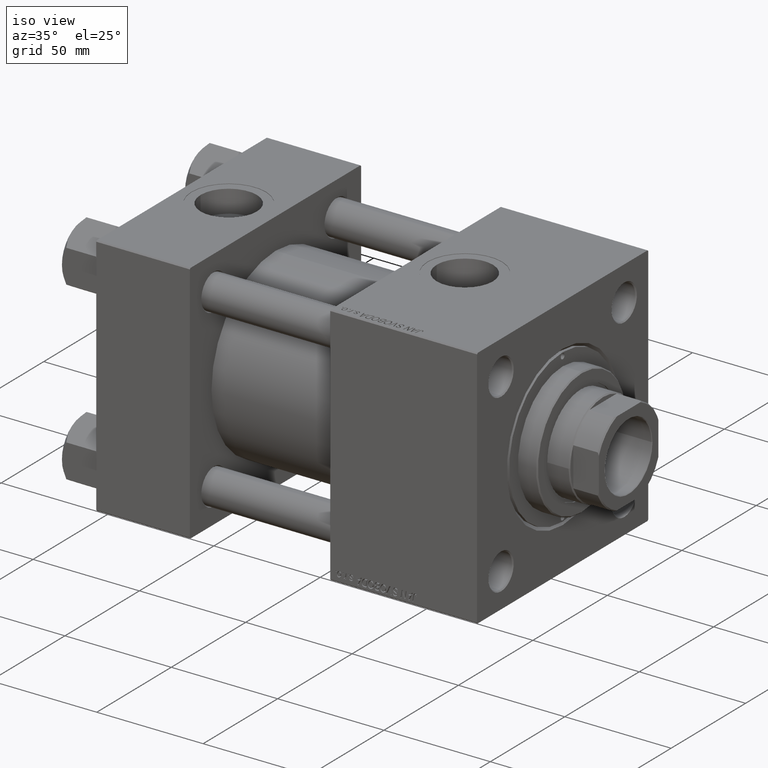
[diagram: clean part render]
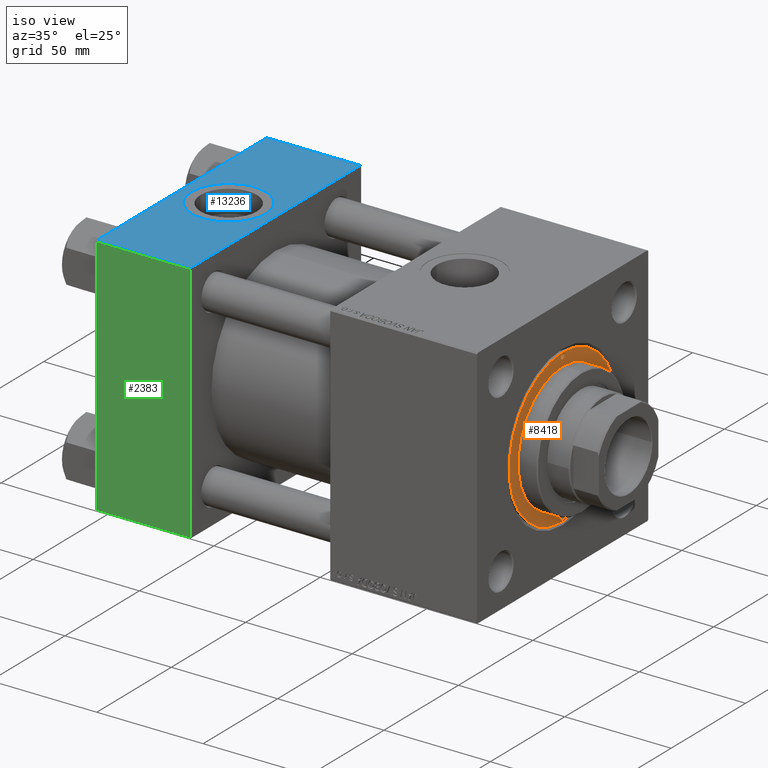
[diagram: same view with three faces highlighted in distinct colors, each labeled with its STEP entity id]
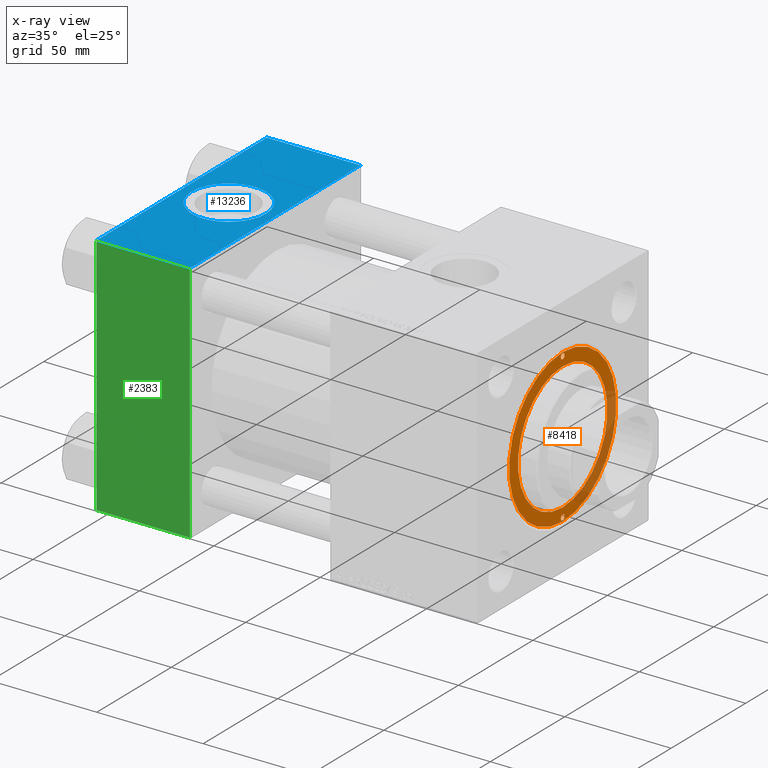
[diagram: x-ray of the same camera — body ghosted, the three highlighted faces saturated]
A machine part, iso view with three faces highlighted in distinct colors.
The next image is the same camera in x-ray (body ghosted, the three faces saturated) — at least one of them is partly hidden behind the body in this view.
Their STEP definitions:

[orange] entity #8418 — the highlighted planar face has unit normal (1, 0, 0).
#423 = ORIENTED_EDGE ( 'NONE', *, *, #40666, .F. ) ;
#1001 = DIRECTION ( 'NONE',  ( 0.000000000000000000, 0.000000000000000000, 1.000000000000000000 ) ) ;
#1249 = CARTESIAN_POINT ( 'NONE',  ( 0.000000000000000000, 0.000000000000000000, 28.69999999999999929 ) ) ;
#1363 = CIRCLE ( 'NONE', #14486, 36.00000000000000000 ) ;
#1564 = AXIS2_PLACEMENT_3D ( 'NONE', #1249, #1001, #35954 ) ;
#2302 = AXIS2_PLACEMENT_3D ( 'NONE', #12744, #8394, #25069 ) ;
#2552 = DIRECTION ( 'NONE',  ( 0.000000000000000000, 0.000000000000000000, 1.000000000000000000 ) ) ;
#3566 = PLANE ( 'NONE',  #35776 ) ;
#3917 = VERTEX_POINT ( 'NONE', #50449 ) ;
#4671 = CARTESIAN_POINT ( 'NONE',  ( -33.00000000000000000, 0.000000000000000000, 28.69999999999999929 ) ) ;
#5636 = DIRECTION ( 'NONE',  ( 0.000000000000000000, 0.000000000000000000, 1.000000000000000000 ) ) ;
#5796 = AXIS2_PLACEMENT_3D ( 'NONE', #44692, #5636, #48801 ) ;
#6740 = VERTEX_POINT ( 'NONE', #38655 ) ;
#6927 = AXIS2_PLACEMENT_3D ( 'NONE', #43673, #36230, #40589 ) ;
#7438 = FACE_BOUND ( 'NONE', #46282, .T. ) ;
#7453 = CIRCLE ( 'NONE', #5796, 1.250000000000001110 ) ;
#8394 = DIRECTION ( 'NONE',  ( 0.000000000000000000, 0.000000000000000000, 1.000000000000000000 ) ) ;
#8418 = ADVANCED_FACE ( 'NONE', ( #7438, #38800, #23106, #11779 ), #3566, .T. ) ;
#8568 = EDGE_CURVE ( 'NONE', #44452, #3917, #1363, .T. ) ;
#11779 = FACE_OUTER_BOUND ( 'NONE', #21892, .T. ) ;
#12021 = EDGE_CURVE ( 'NONE', #27117, #17313, #12904, .T. ) ;
#12744 = CARTESIAN_POINT ( 'NONE',  ( 34.25000000000000000, 0.000000000000000000, 28.69999999999999929 ) ) ;
#12904 = CIRCLE ( 'NONE', #48208, 1.250000000000001110 ) ;
#14027 = ORIENTED_EDGE ( 'NONE', *, *, #34487, .F. ) ;
#14486 = AXIS2_PLACEMENT_3D ( 'NONE', #34121, #35317, #18677 ) ;
#15075 = CARTESIAN_POINT ( 'NONE',  ( 0.000000000000000000, 0.000000000000000000, 28.69999999999999929 ) ) ;
#15883 = DIRECTION ( 'NONE',  ( 1.000000000000000000, 0.000000000000000000, -0.000000000000000000 ) ) ;
#17190 = ORIENTED_EDGE ( 'NONE', *, *, #39849, .F. ) ;
#17313 = VERTEX_POINT ( 'NONE', #42458 ) ;
#18677 = DIRECTION ( 'NONE',  ( 1.000000000000000000, 0.000000000000000000, 0.000000000000000000 ) ) ;
#19545 = EDGE_CURVE ( 'NONE', #42826, #42076, #7453, .T. ) ;
#20529 = CARTESIAN_POINT ( 'NONE',  ( -30.00000000000000000, 0.000000000000000000, 28.69999999999999929 ) ) ;
#21892 = EDGE_LOOP ( 'NONE', ( #39592, #50378 ) ) ;
#22120 = CIRCLE ( 'NONE', #2302, 1.250000000000001110 ) ;
#23106 = FACE_BOUND ( 'NONE', #39727, .T. ) ;
#23565 = CIRCLE ( 'NONE', #25177, 1.250000000000001110 ) ;
#24369 = CARTESIAN_POINT ( 'NONE',  ( -35.50000000000000711, 1.530808498934184175E-16, 28.69999999999999929 ) ) ;
#24651 = EDGE_LOOP ( 'NONE', ( #423, #30419 ) ) ;
#25069 = DIRECTION ( 'NONE',  ( 1.000000000000000000, 0.000000000000000000, 0.000000000000000000 ) ) ;
#25177 = AXIS2_PLACEMENT_3D ( 'NONE', #49836, #2552, #25684 ) ;
#25684 = DIRECTION ( 'NONE',  ( 1.000000000000000000, 0.000000000000000000, 0.000000000000000000 ) ) ;
#26646 = DIRECTION ( 'NONE',  ( 0.000000000000000000, 0.000000000000000000, 1.000000000000000000 ) ) ;
#27117 = VERTEX_POINT ( 'NONE', #37221 ) ;
#27615 = DIRECTION ( 'NONE',  ( 0.000000000000000000, 0.000000000000000000, 1.000000000000000000 ) ) ;
#28243 = EDGE_CURVE ( 'NONE', #3917, #44452, #47949, .T. ) ;
#30419 = ORIENTED_EDGE ( 'NONE', *, *, #12021, .F. ) ;
#31216 = CARTESIAN_POINT ( 'NONE',  ( 34.25000000000000000, 0.000000000000000000, 28.69999999999999929 ) ) ;
#32231 = CARTESIAN_POINT ( 'NONE',  ( -36.00000000000000000, 0.000000000000000000, 28.69999999999999929 ) ) ;
#34121 = CARTESIAN_POINT ( 'NONE',  ( 0.000000000000000000, 0.000000000000000000, 28.69999999999999929 ) ) ;
#34414 = AXIS2_PLACEMENT_3D ( 'NONE', #15075, #26646, #42339 ) ;
#34487 = EDGE_CURVE ( 'NONE', #42076, #42826, #23565, .T. ) ;
#35317 = DIRECTION ( 'NONE',  ( 0.000000000000000000, 0.000000000000000000, 1.000000000000000000 ) ) ;
#35776 = AXIS2_PLACEMENT_3D ( 'NONE', #42899, #43140, #15883 ) ;
#35954 = DIRECTION ( 'NONE',  ( 1.000000000000000000, 0.000000000000000000, 0.000000000000000000 ) ) ;
#36230 = DIRECTION ( 'NONE',  ( 0.000000000000000000, 0.000000000000000000, 1.000000000000000000 ) ) ;
#37221 = CARTESIAN_POINT ( 'NONE',  ( 33.00000000000000000, 1.530808498934184175E-16, 28.69999999999999929 ) ) ;
#38655 = CARTESIAN_POINT ( 'NONE',  ( 30.00000000000000000, 3.673940397442059178E-15, 28.69999999999999929 ) ) ;
#38800 = FACE_BOUND ( 'NONE', #24651, .T. ) ;
#39377 = EDGE_CURVE ( 'NONE', #6740, #47552, #45886, .T. ) ;
#39592 = ORIENTED_EDGE ( 'NONE', *, *, #8568, .T. ) ;
#39727 = EDGE_LOOP ( 'NONE', ( #17190, #41675 ) ) ;
#39849 = EDGE_CURVE ( 'NONE', #47552, #6740, #50718, .T. ) ;
#40589 = DIRECTION ( 'NONE',  ( 1.000000000000000000, 0.000000000000000000, 0.000000000000000000 ) ) ;
#40666 = EDGE_CURVE ( 'NONE', #17313, #27117, #22120, .T. ) ;
#41675 = ORIENTED_EDGE ( 'NONE', *, *, #39377, .F. ) ;
#42076 = VERTEX_POINT ( 'NONE', #4671 ) ;
#42339 = DIRECTION ( 'NONE',  ( 1.000000000000000000, 0.000000000000000000, 0.000000000000000000 ) ) ;
#42458 = CARTESIAN_POINT ( 'NONE',  ( 35.50000000000000711, 0.000000000000000000, 28.69999999999999929 ) ) ;
#42826 = VERTEX_POINT ( 'NONE', #24369 ) ;
#42899 = CARTESIAN_POINT ( 'NONE',  ( 0.000000000000000000, 0.000000000000000000, 28.69999999999999929 ) ) ;
#43140 = DIRECTION ( 'NONE',  ( 0.000000000000000000, 0.000000000000000000, 1.000000000000000000 ) ) ;
#43290 = DIRECTION ( 'NONE',  ( 1.000000000000000000, 0.000000000000000000, 0.000000000000000000 ) ) ;
#43673 = CARTESIAN_POINT ( 'NONE',  ( 0.000000000000000000, 0.000000000000000000, 28.69999999999999929 ) ) ;
#44062 = ORIENTED_EDGE ( 'NONE', *, *, #19545, .F. ) ;
#44452 = VERTEX_POINT ( 'NONE', #32231 ) ;
#44692 = CARTESIAN_POINT ( 'NONE',  ( -34.25000000000000000, 0.000000000000000000, 28.69999999999999929 ) ) ;
#45886 = CIRCLE ( 'NONE', #1564, 30.00000000000000000 ) ;
#46282 = EDGE_LOOP ( 'NONE', ( #14027, #44062 ) ) ;
#47552 = VERTEX_POINT ( 'NONE', #20529 ) ;
#47949 = CIRCLE ( 'NONE', #6927, 36.00000000000000000 ) ;
#48208 = AXIS2_PLACEMENT_3D ( 'NONE', #31216, #27615, #43290 ) ;
#48801 = DIRECTION ( 'NONE',  ( 1.000000000000000000, 0.000000000000000000, 0.000000000000000000 ) ) ;
#49836 = CARTESIAN_POINT ( 'NONE',  ( -34.25000000000000000, 0.000000000000000000, 28.69999999999999929 ) ) ;
#50378 = ORIENTED_EDGE ( 'NONE', *, *, #28243, .T. ) ;
#50449 = CARTESIAN_POINT ( 'NONE',  ( 36.00000000000000000, 4.408728476930470856E-15, 28.69999999999999929 ) ) ;
#50718 = CIRCLE ( 'NONE', #34414, 30.00000000000000000 ) ;

[blue] entity #13236 — the highlighted planar face has unit normal (0, 0, -1).
#46 = CARTESIAN_POINT ( 'NONE',  ( 0.000000000000000000, 57.49999999999999289, 57.50000000000000711 ) ) ;
#227 = CARTESIAN_POINT ( 'NONE',  ( 4.499999999999997335, -6.530485481376167224E-15, 57.50000000000000000 ) ) ;
#1009 = DIRECTION ( 'NONE',  ( 1.000000000000000000, 0.000000000000000000, 0.000000000000000000 ) ) ;
#1403 = VECTOR ( 'NONE', #21454, 1000.000000000000000 ) ;
#2510 = FACE_OUTER_BOUND ( 'NONE', #43989, .T. ) ;
#3097 = EDGE_LOOP ( 'NONE', ( #20693, #30314 ) ) ;
#3955 = AXIS2_PLACEMENT_3D ( 'NONE', #34130, #33368, #33627 ) ;
#4293 = EDGE_CURVE ( 'NONE', #10161, #41002, #24405, .T. ) ;
#5573 = ORIENTED_EDGE ( 'NONE', *, *, #7529, .F. ) ;
#6027 = LINE ( 'NONE', #49462, #1403 ) ;
#6238 = VERTEX_POINT ( 'NONE', #227 ) ;
#6565 = CARTESIAN_POINT ( 'NONE',  ( 44.00000000000000000, -57.00000000000003553, 57.49999999999999289 ) ) ;
#6854 = ORIENTED_EDGE ( 'NONE', *, *, #47565, .T. ) ;
#7529 = EDGE_CURVE ( 'NONE', #10161, #40786, #6027, .T. ) ;
#8102 = DIRECTION ( 'NONE',  ( 0.000000000000000000, 0.000000000000000000, 1.000000000000000000 ) ) ;
#8361 = CARTESIAN_POINT ( 'NONE',  ( 22.00000000000000000, -8.673617379884035472E-15, 57.50000000000000000 ) ) ;
#8864 = DIRECTION ( 'NONE',  ( 1.000000000000000000, 0.000000000000000000, 0.000000000000000000 ) ) ;
#8962 = EDGE_CURVE ( 'NONE', #41002, #28408, #42205, .T. ) ;
#9910 = VECTOR ( 'NONE', #1009, 1000.000000000000000 ) ;
#10161 = VERTEX_POINT ( 'NONE', #37943 ) ;
#12960 = AXIS2_PLACEMENT_3D ( 'NONE', #15839, #31518, #18690 ) ;
#13236 = ADVANCED_FACE ( 'NONE', ( #37480, #2510 ), #18433, .F. ) ;
#13450 = ORIENTED_EDGE ( 'NONE', *, *, #8962, .T. ) ;
#15293 = VECTOR ( 'NONE', #16706, 1000.000000000000000 ) ;
#15691 = AXIS2_PLACEMENT_3D ( 'NONE', #8361, #8102, #8864 ) ;
#15839 = CARTESIAN_POINT ( 'NONE',  ( 22.00000000000000000, -8.673617379884035472E-15, 57.50000000000000000 ) ) ;
#16706 = DIRECTION ( 'NONE',  ( 0.000000000000000000, -1.000000000000000000, -1.206764157201257045E-16 ) ) ;
#18433 = PLANE ( 'NONE',  #3955 ) ;
#18690 = DIRECTION ( 'NONE',  ( 1.000000000000000000, 0.000000000000000000, 0.000000000000000000 ) ) ;
#19414 = VERTEX_POINT ( 'NONE', #40596 ) ;
#20121 = EDGE_CURVE ( 'NONE', #19414, #6238, #27149, .T. ) ;
#20693 = ORIENTED_EDGE ( 'NONE', *, *, #20121, .F. ) ;
#21454 = DIRECTION ( 'NONE',  ( 0.000000000000000000, -1.000000000000000000, -1.206764157201257045E-16 ) ) ;
#21560 = CARTESIAN_POINT ( 'NONE',  ( 0.000000000000000000, -57.00000000000003553, 57.49999999999999289 ) ) ;
#24405 = LINE ( 'NONE', #49069, #43945 ) ;
#27149 = CIRCLE ( 'NONE', #15691, 17.50000000000000000 ) ;
#28122 = CARTESIAN_POINT ( 'NONE',  ( 0.000000000000000000, 57.00000000000000711, 57.50000000000000711 ) ) ;
#28408 = VERTEX_POINT ( 'NONE', #21560 ) ;
#28678 = CIRCLE ( 'NONE', #12960, 17.50000000000000000 ) ;
#30314 = ORIENTED_EDGE ( 'NONE', *, *, #39663, .F. ) ;
#31518 = DIRECTION ( 'NONE',  ( 0.000000000000000000, 0.000000000000000000, 1.000000000000000000 ) ) ;
#33368 = DIRECTION ( 'NONE',  ( 0.000000000000000000, 1.206764157201257045E-16, -1.000000000000000000 ) ) ;
#33627 = DIRECTION ( 'NONE',  ( 0.000000000000000000, 1.000000000000000000, 1.206764157201257045E-16 ) ) ;
#34130 = CARTESIAN_POINT ( 'NONE',  ( 44.00000000000000000, 57.49999999999999289, 57.50000000000000711 ) ) ;
#36719 = CARTESIAN_POINT ( 'NONE',  ( 44.00000000000000000, -57.00000000000003553, 57.49999999999999289 ) ) ;
#37480 = FACE_BOUND ( 'NONE', #3097, .T. ) ;
#37943 = CARTESIAN_POINT ( 'NONE',  ( 44.00000000000000000, 57.00000000000000711, 57.50000000000000711 ) ) ;
#39663 = EDGE_CURVE ( 'NONE', #6238, #19414, #28678, .T. ) ;
#40100 = DIRECTION ( 'NONE',  ( -1.000000000000000000, 0.000000000000000000, 0.000000000000000000 ) ) ;
#40329 = LINE ( 'NONE', #36719, #9910 ) ;
#40596 = CARTESIAN_POINT ( 'NONE',  ( 39.50000000000000000, -8.673617379884035472E-15, 57.50000000000000000 ) ) ;
#40786 = VERTEX_POINT ( 'NONE', #6565 ) ;
#41002 = VERTEX_POINT ( 'NONE', #28122 ) ;
#42205 = LINE ( 'NONE', #46, #15293 ) ;
#43945 = VECTOR ( 'NONE', #40100, 1000.000000000000000 ) ;
#43989 = EDGE_LOOP ( 'NONE', ( #13450, #6854, #5573, #48128 ) ) ;
#47565 = EDGE_CURVE ( 'NONE', #28408, #40786, #40329, .T. ) ;
#48128 = ORIENTED_EDGE ( 'NONE', *, *, #4293, .T. ) ;
#49069 = CARTESIAN_POINT ( 'NONE',  ( 0.000000000000000000, 57.00000000000000711, 57.50000000000000711 ) ) ;
#49462 = CARTESIAN_POINT ( 'NONE',  ( 44.00000000000000000, 57.49999999999999289, 57.50000000000000711 ) ) ;

[green] entity #2383 — the highlighted planar face has unit normal (0, 1, 0).
#88 = LINE ( 'NONE', #35044, #30304 ) ;
#2383 = ADVANCED_FACE ( 'NONE', ( #7222 ), #3104, .F. ) ;
#2786 = DIRECTION ( 'NONE',  ( -1.000000000000000000, 0.000000000000000000, 0.000000000000000000 ) ) ;
#3104 = PLANE ( 'NONE',  #33283 ) ;
#3365 = DIRECTION ( 'NONE',  ( -0.000000000000000000, 1.000000000000000000, 0.000000000000000000 ) ) ;
#4232 = CARTESIAN_POINT ( 'NONE',  ( 0.000000000000000000, -57.50000000000000711, -57.00000000000000711 ) ) ;
#6252 = ORIENTED_EDGE ( 'NONE', *, *, #7101, .F. ) ;
#6469 = DIRECTION ( 'NONE',  ( 0.000000000000000000, 0.000000000000000000, -1.000000000000000000 ) ) ;
#7101 = EDGE_CURVE ( 'NONE', #45337, #32787, #19049, .T. ) ;
#7222 = FACE_OUTER_BOUND ( 'NONE', #30596, .T. ) ;
#10293 = VERTEX_POINT ( 'NONE', #4232 ) ;
#11642 = DIRECTION ( 'NONE',  ( 0.000000000000000000, 0.000000000000000000, -1.000000000000000000 ) ) ;
#16379 = EDGE_CURVE ( 'NONE', #38162, #10293, #88, .T. ) ;
#19049 = LINE ( 'NONE', #22648, #22635 ) ;
#19501 = EDGE_CURVE ( 'NONE', #45337, #38162, #25674, .T. ) ;
#22635 = VECTOR ( 'NONE', #6469, 1000.000000000000000 ) ;
#22648 = CARTESIAN_POINT ( 'NONE',  ( 44.00000000000000000, -57.50000000000000711, 57.49999999999999289 ) ) ;
#22714 = EDGE_CURVE ( 'NONE', #10293, #32787, #42789, .T. ) ;
#23235 = CARTESIAN_POINT ( 'NONE',  ( 44.00000000000000000, -57.50000000000000711, -57.00000000000000711 ) ) ;
#24678 = VECTOR ( 'NONE', #2786, 1000.000000000000000 ) ;
#25674 = LINE ( 'NONE', #41881, #24678 ) ;
#28792 = CARTESIAN_POINT ( 'NONE',  ( 0.000000000000000000, -57.50000000000000711, 57.00000000000000711 ) ) ;
#30304 = VECTOR ( 'NONE', #11642, 1000.000000000000000 ) ;
#30596 = EDGE_LOOP ( 'NONE', ( #36959, #31824, #6252, #42015 ) ) ;
#31215 = CARTESIAN_POINT ( 'NONE',  ( 44.00000000000000000, -57.50000000000000711, 57.00000000000000711 ) ) ;
#31824 = ORIENTED_EDGE ( 'NONE', *, *, #22714, .T. ) ;
#32787 = VERTEX_POINT ( 'NONE', #42243 ) ;
#33283 = AXIS2_PLACEMENT_3D ( 'NONE', #38585, #3365, #50386 ) ;
#35044 = CARTESIAN_POINT ( 'NONE',  ( 0.000000000000000000, -57.50000000000000711, 57.49999999999999289 ) ) ;
#36959 = ORIENTED_EDGE ( 'NONE', *, *, #16379, .T. ) ;
#38162 = VERTEX_POINT ( 'NONE', #28792 ) ;
#38585 = CARTESIAN_POINT ( 'NONE',  ( 44.00000000000000000, -57.50000000000000711, 57.49999999999999289 ) ) ;
#41881 = CARTESIAN_POINT ( 'NONE',  ( 44.00000000000000000, -57.50000000000000711, 57.00000000000000711 ) ) ;
#42015 = ORIENTED_EDGE ( 'NONE', *, *, #19501, .T. ) ;
#42243 = CARTESIAN_POINT ( 'NONE',  ( 44.00000000000000000, -57.50000000000000711, -57.00000000000000711 ) ) ;
#42789 = LINE ( 'NONE', #23235, #46014 ) ;
#45337 = VERTEX_POINT ( 'NONE', #31215 ) ;
#46014 = VECTOR ( 'NONE', #50740, 1000.000000000000000 ) ;
#50386 = DIRECTION ( 'NONE',  ( 0.000000000000000000, -0.000000000000000000, 1.000000000000000000 ) ) ;
#50740 = DIRECTION ( 'NONE',  ( 1.000000000000000000, 0.000000000000000000, 0.000000000000000000 ) ) ;